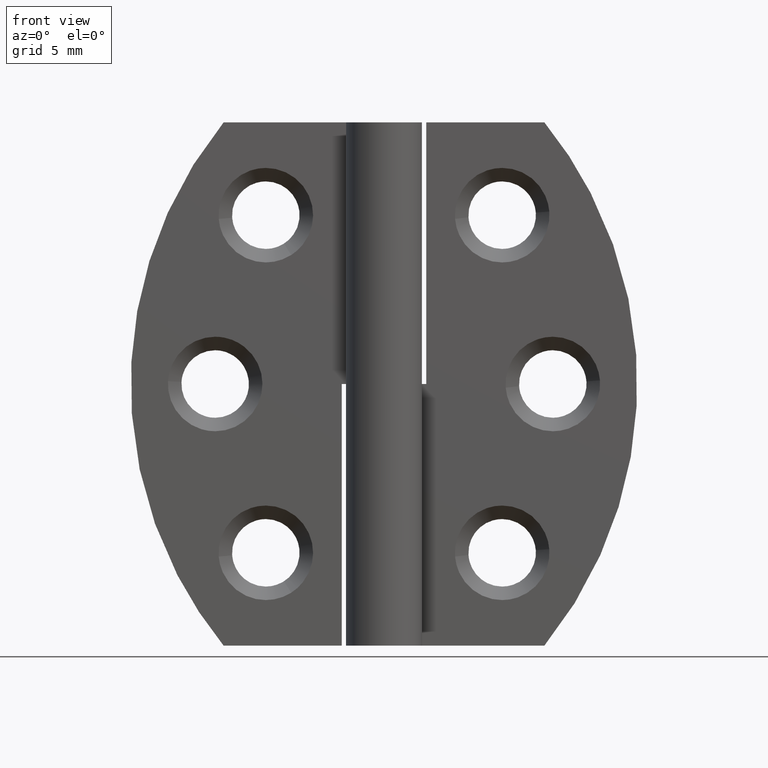
[diagram: clean part render]
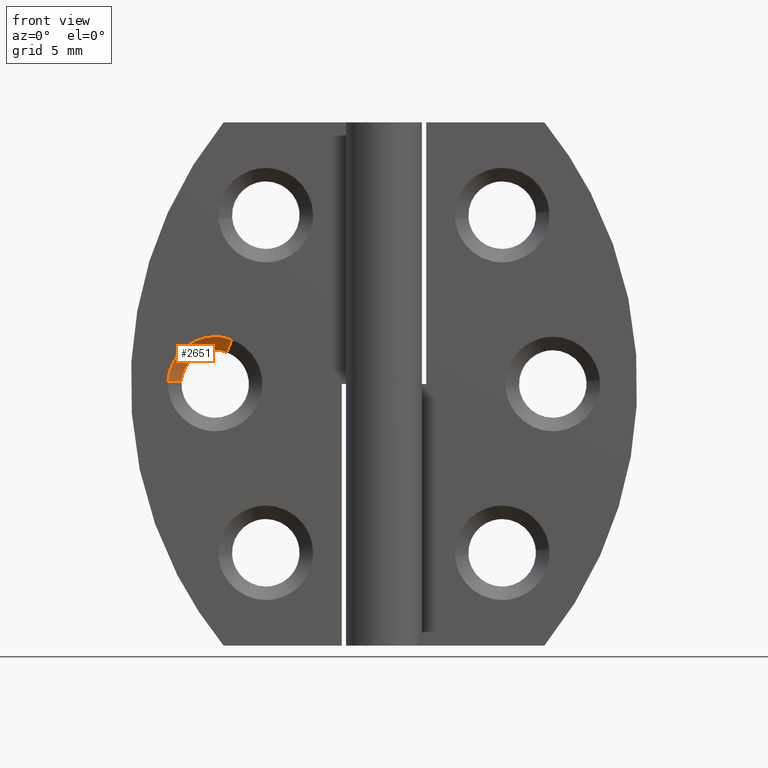
[diagram: same view with one face highlighted and labeled with its STEP entity id]
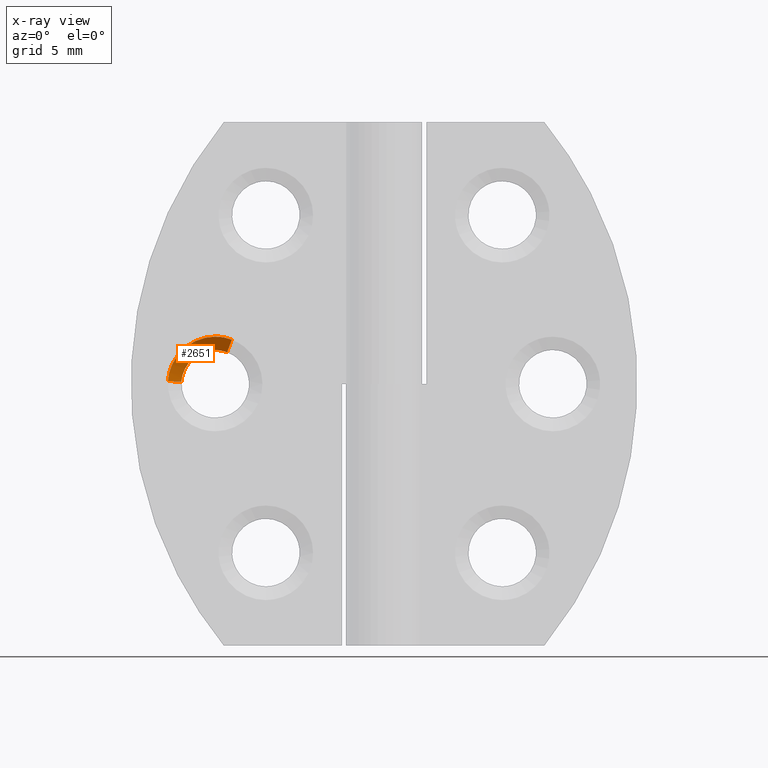
[diagram: x-ray of the same camera — body ghosted, the highlighted face saturated]
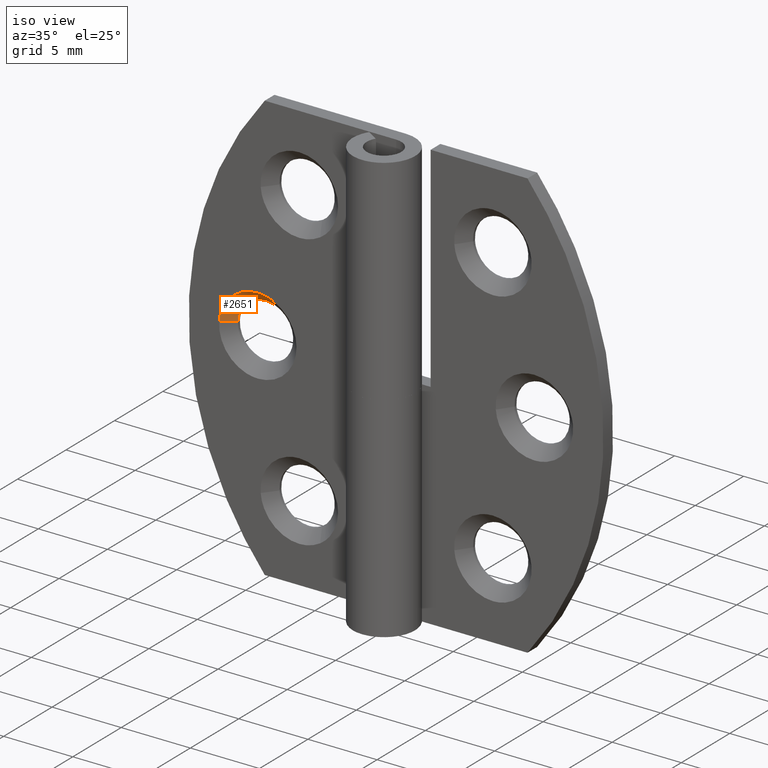
[diagram: same view with one face highlighted and labeled with its STEP entity id]
A machine part, front view. The second image highlights one B-rep face of the part: STEP entity #2651.
The next image is the same camera in x-ray: the body ghosted, the highlighted face saturated — about 0% of this face is hidden behind the body in this view.
A second angle (iso view) of the same face is appended — the face is thin or edge-on in the first view.
In plain terms, the highlighted face is a freeform B-spline surface patch.
Its self-contained STEP definition (entity closure, byte-faithful):
#2557=CARTESIAN_POINT('',(-9.303796410704486,2.070000000000000,17.353564285977775));
#2558=CARTESIAN_POINT('',(-9.582240885603291,2.070000000000000,17.458148758342990));
#2559=CARTESIAN_POINT('',(-9.879123891720782,2.070000000000000,17.476306900875290));
#2560=CARTESIAN_POINT('',(-11.855430792596078,2.070000000000001,17.597183009154310));
#2561=CARTESIAN_POINT('',(-11.976306900875100,2.070000000000000,15.620876108279020));
#2562=CARTESIAN_POINT('',(-9.008261503228370,1.229500000000000,18.140392963939561));
#2563=CARTESIAN_POINT('',(-9.404904251436490,1.229500000000000,18.289373016619400));
#2564=CARTESIAN_POINT('',(-9.827812594241735,1.229500000000000,18.315239198948870));
#2565=CARTESIAN_POINT('',(-12.643051793190610,1.229500000000000,18.487426604706943));
#2566=CARTESIAN_POINT('',(-12.815239198948669,1.229500000000000,15.672187405758070));
#2574=(BOUNDED_SURFACE()B_SPLINE_SURFACE(2,1,((#2557,#2562),(#2558,#2563),(#2559,#2564),(#2560,#2565),(#2561,#2566)),.UNSPECIFIED.,.F.,.F.,.U.)B_SPLINE_SURFACE_WITH_KNOTS((3,2,3),(2,2),(0.0,0.934631482138651,5.607788892831906),(0.0,1.0),.UNSPECIFIED.)GEOMETRIC_REPRESENTATION_ITEM()RATIONAL_B_SPLINE_SURFACE(((0.906274169979695,0.906274169979695),(0.941421356237309,0.941421356237309),(1.0,1.0),(0.707106781186548,0.707106781186548),(1.0,1.0)))REPRESENTATION_ITEM('')SURFACE());
#2575=CARTESIAN_POINT('',(-9.296764051111870,2.049999999989864,17.372287157524781));
#2576=VERTEX_POINT('',#2575);
#2577=CARTESIAN_POINT('',(-9.999999999999799,2.050000000000000,17.500000000000000));
#2578=VERTEX_POINT('',#2577);
#2579=CARTESIAN_POINT('',(-9.296764051111870,2.049999999989864,17.372287157524784));
#2580=CARTESIAN_POINT('',(-9.636785227754587,2.050000000000001,17.500000000000000));
#2581=CARTESIAN_POINT('',(-9.999999999999799,2.050000000000000,17.500000000000000));
#2589=(BOUNDED_CURVE()B_SPLINE_CURVE(2,(#2579,#2580,#2581),.UNSPECIFIED.,.F.,.U.)B_SPLINE_CURVE_WITH_KNOTS((3,3),(0.440284170881831,0.500000000000000),.UNSPECIFIED.)CURVE()GEOMETRIC_REPRESENTATION_ITEM()RATIONAL_B_SPLINE_CURVE((0.893499554614866,0.930038554381862,1.0))REPRESENTATION_ITEM(''));
#2590=EDGE_CURVE('',#2576,#2578,#2589,.T.);
#2591=ORIENTED_EDGE('',*,*,#2590,.F.);
#2592=CARTESIAN_POINT('',(-9.015469671617819,1.249999999991550,18.121202020551522));
#2593=VERTEX_POINT('',#2592);
#2594=CARTESIAN_POINT('',(-9.296764051111870,2.049999999989864,17.372287157524781));
#2595=CARTESIAN_POINT('',(-9.015469671617819,1.249999999991550,18.121202020551522));
#2596=QUASI_UNIFORM_CURVE('',1,(#2594,#2595),.UNSPECIFIED.,.F.,.U.);
#2597=EDGE_CURVE('',#2576,#2593,#2596,.T.);
#2598=ORIENTED_EDGE('',*,*,#2597,.T.);
#2599=CARTESIAN_POINT('',(-9.999999999999799,1.250000000000000,18.300000000000001));
#2600=VERTEX_POINT('',#2599);
#2601=CARTESIAN_POINT('',(-9.015469671617819,1.249999999991550,18.121202020551525));
#2602=CARTESIAN_POINT('',(-9.491499318921717,1.250000000000000,18.300000000000001));
#2603=CARTESIAN_POINT('',(-9.999999999999799,1.250000000000000,18.300000000000001));
#2611=(BOUNDED_CURVE()B_SPLINE_CURVE(2,(#2601,#2602,#2603),.UNSPECIFIED.,.F.,.U.)B_SPLINE_CURVE_WITH_KNOTS((3,3),(0.440284170888954,0.500000000000000),.UNSPECIFIED.)CURVE()GEOMETRIC_REPRESENTATION_ITEM()RATIONAL_B_SPLINE_CURVE((0.893499554623582,0.930038554390207,1.0))REPRESENTATION_ITEM(''));
#2612=EDGE_CURVE('',#2593,#2600,#2611,.T.);
#2613=ORIENTED_EDGE('',*,*,#2612,.T.);
#2614=CARTESIAN_POINT('',(-12.794777435592090,1.249999999979323,15.670935910855359));
#2615=VERTEX_POINT('',#2614);
#2616=CARTESIAN_POINT('',(-9.999999999999799,1.250000000000000,18.300000000000001));
#2617=CARTESIAN_POINT('',(-12.633976987040215,1.250000000000000,18.299999999999997));
#2618=CARTESIAN_POINT('',(-12.794777435592097,1.249999999979323,15.670935910855359));
#2626=(BOUNDED_CURVE()B_SPLINE_CURVE(2,(#2616,#2617,#2618),.UNSPECIFIED.,.F.,.U.)B_SPLINE_CURVE_WITH_KNOTS((3,3),(0.500000000000000,0.739332962222645),.UNSPECIFIED.)CURVE()GEOMETRIC_REPRESENTATION_ITEM()RATIONAL_B_SPLINE_CURVE((1.0,0.719603993305804,0.976072041631788))REPRESENTATION_ITEM(''));
#2627=EDGE_CURVE('',#2600,#2615,#2626,.T.);
#2628=ORIENTED_EDGE('',*,*,#2627,.T.);
#2629=CARTESIAN_POINT('',(-11.996269596840520,2.050000000000000,15.622097079119030));
#2630=VERTEX_POINT('',#2629);
#2631=CARTESIAN_POINT('',(-11.996269596840520,2.050000000000000,15.622097079119030));
#2632=CARTESIAN_POINT('',(-12.794777435592090,1.249999999979323,15.670935910855359));
#2633=QUASI_UNIFORM_CURVE('',1,(#2631,#2632),.UNSPECIFIED.,.F.,.U.);
#2634=EDGE_CURVE('',#2630,#2615,#2633,.T.);
#2635=ORIENTED_EDGE('',*,*,#2634,.F.);
#2636=CARTESIAN_POINT('',(-9.999999999999799,2.050000000000000,17.500000000000000));
#2637=CARTESIAN_POINT('',(-11.881412133624911,2.050000000000000,17.500000000000000));
#2638=CARTESIAN_POINT('',(-11.996269596840520,2.050000000000000,15.622097079119030));
#2646=(BOUNDED_CURVE()B_SPLINE_CURVE(2,(#2636,#2637,#2638),.UNSPECIFIED.,.F.,.U.)B_SPLINE_CURVE_WITH_KNOTS((3,3),(0.500000000000000,0.739332962224916),.UNSPECIFIED.)CURVE()GEOMETRIC_REPRESENTATION_ITEM()RATIONAL_B_SPLINE_CURVE((1.0,0.719603993303143,0.976072041636656))REPRESENTATION_ITEM(''));
#2647=EDGE_CURVE('',#2578,#2630,#2646,.T.);
#2648=ORIENTED_EDGE('',*,*,#2647,.F.);
#2649=EDGE_LOOP('',(#2591,#2598,#2613,#2628,#2635,#2648));
#2650=FACE_OUTER_BOUND('',#2649,.T.);
#2651=ADVANCED_FACE('',(#2650),#2574,.F.);